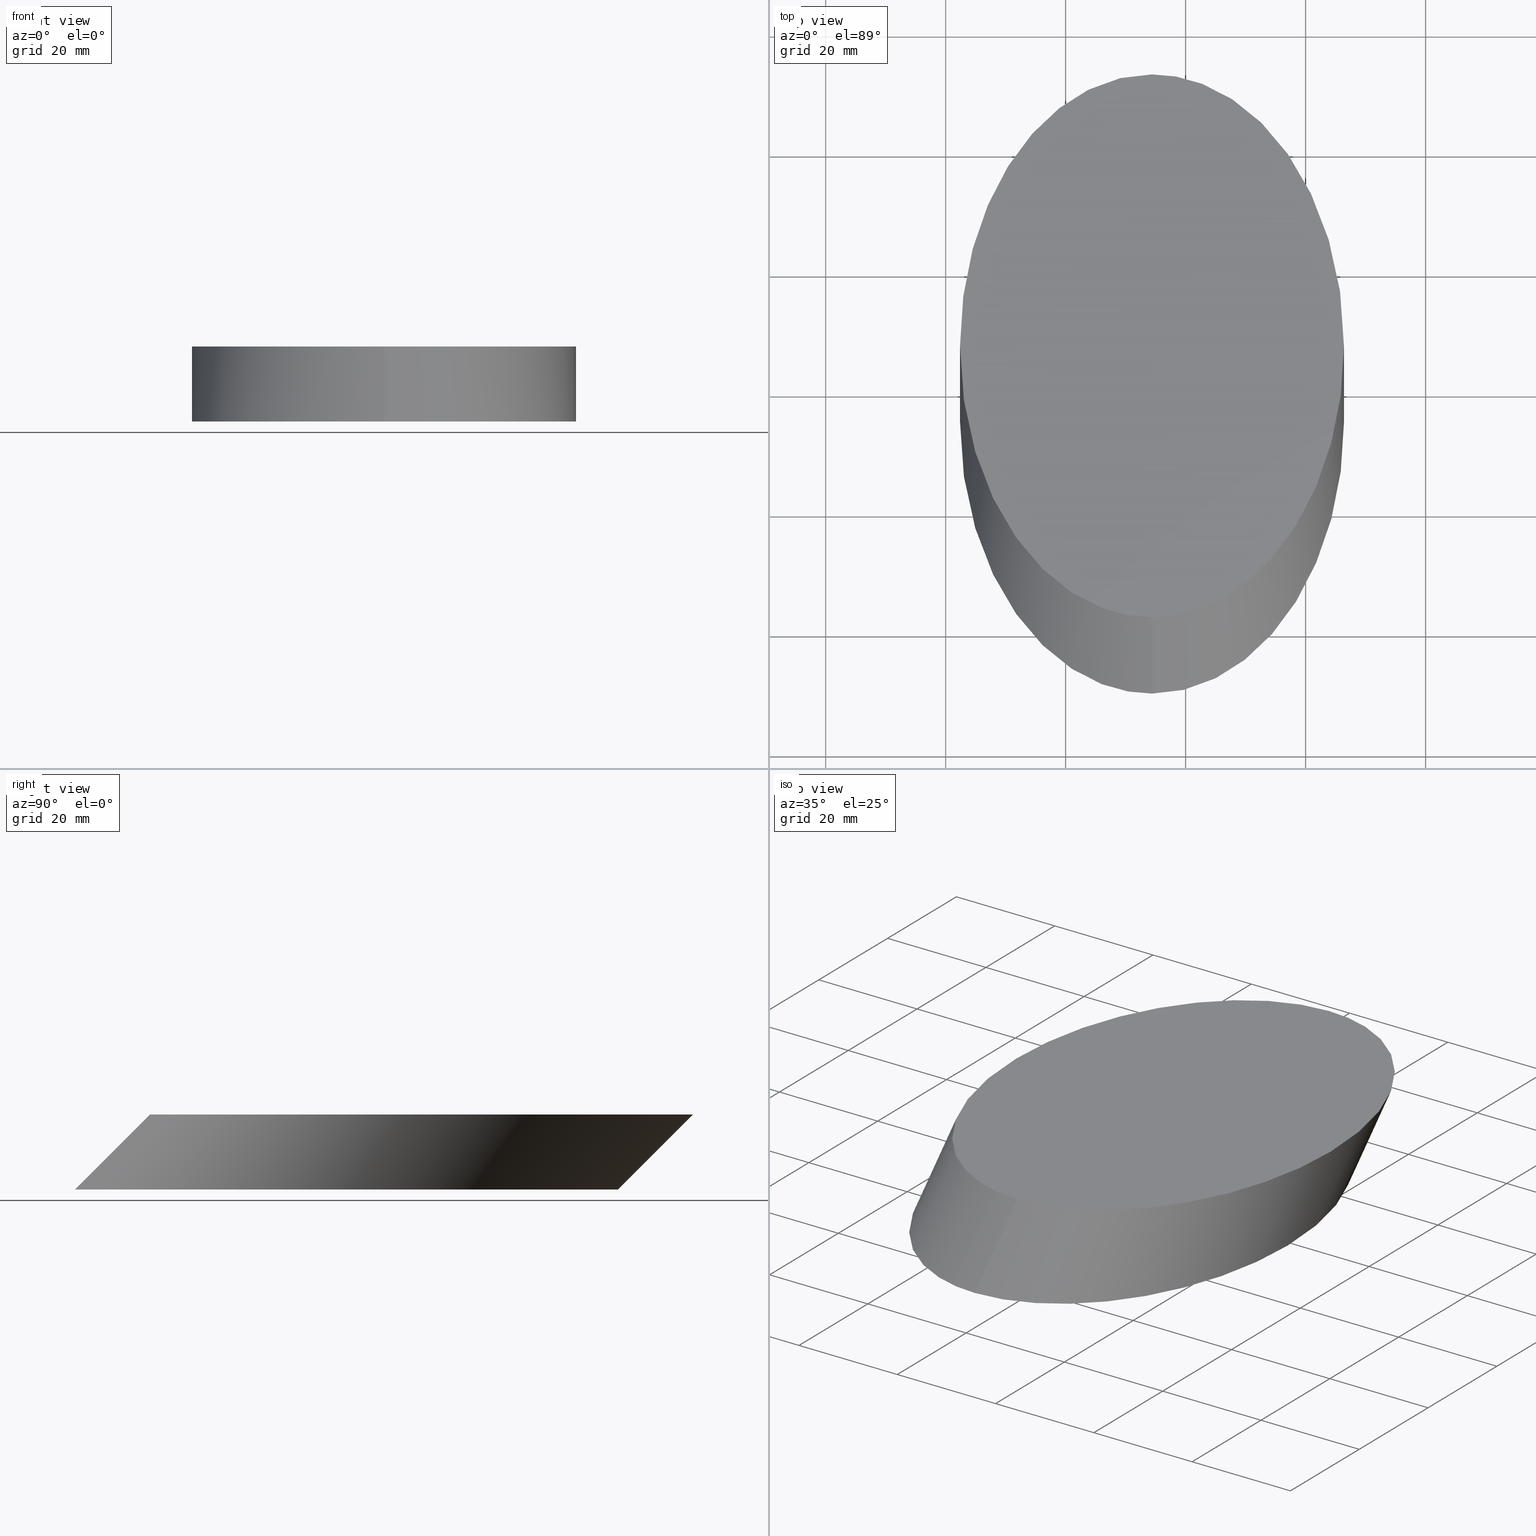
[diagram: canonical four-view strip — front | top / right | iso, engineering-drawing reading convention]
A machine part, canonical four-view strip (front | top / right | iso — engineering-drawing reading convention). The complete STEP part file that produces these views, byte-faithful:
ISO-10303-21;
HEADER;
FILE_DESCRIPTION (( 'STEP AP214' ),
    '1' );
FILE_NAME ('290005.STEP',
    '2019-08-12T02:04:54',
    ( '' ),
    ( '' ),
    'SwSTEP 2.0',
    'SolidWorks 2016',
    '' );
FILE_SCHEMA (( 'AUTOMOTIVE_DESIGN' ));
ENDSEC;

DATA;
#1 = CARTESIAN_POINT ( 'NONE',  ( 54.39238298171604700, -9.471128469677900300, -8.673617379884035500E-015 ) ) ;
#2 = PRESENTATION_LAYER_ASSIGNMENT (  '', '', ( #125 ) ) ;
#3 = CARTESIAN_POINT ( 'NONE',  ( 118.3923829817160300, 3.030519421700304400, 12.50164789137811800 ) ) ;
#4 = ORIENTED_EDGE ( 'NONE', *, *, #139, .T. ) ;
#5 = CARTESIAN_POINT ( 'NONE',  ( -9.607617018283935600, 81.04887153032210300, 0.0000000000000000000 ) ) ;
#6 = CARTESIAN_POINT ( 'NONE',  ( 54.39238298171605400, 93.55051942170031500, 12.50164789137811800 ) ) ;
#7 = PRESENTATION_STYLE_ASSIGNMENT (( #63 ) ) ;
#8 = PRESENTATION_LAYER_ASSIGNMENT (  '', '', ( #34 ) ) ;
#9 = UNCERTAINTY_MEASURE_WITH_UNIT (LENGTH_MEASURE( 1.000000000000000100E-005 ), #124, 'distance_accuracy_value', 'NONE');
#10 = VERTEX_POINT ( 'NONE', #103 ) ;
#11 = EDGE_LOOP ( 'NONE', ( #43, #148, #39, #46 ) ) ;
#12 = CARTESIAN_POINT ( 'NONE',  ( -9.607617018283940900, 3.030519421700327500, 12.50164789137811800 ) ) ;
#13 = FACE_OUTER_BOUND ( 'NONE', #20, .T. ) ;
#14 = CARTESIAN_POINT ( 'NONE',  ( 54.39238298171605400, 93.55051942170031500, 12.50164789137811800 ) ) ;
#15 = ORIENTED_EDGE ( 'NONE', *, *, #58, .F. ) ;
#16 = CARTESIAN_POINT ( 'NONE',  ( 118.3923829817160400, 93.55051942170031500, 12.50164789137811800 ) ) ;
#17 = CARTESIAN_POINT ( 'NONE',  ( 54.39238298171605400, 93.55051942170031500, 12.50164789137811800 ) ) ;
#18 =( GEOMETRIC_REPRESENTATION_CONTEXT ( 3 ) GLOBAL_UNCERTAINTY_ASSIGNED_CONTEXT ( ( #59 ) ) GLOBAL_UNIT_ASSIGNED_CONTEXT ( ( #106, #64, #110 ) ) REPRESENTATION_CONTEXT ( 'NONE', 'WORKASPACE' ) );
#19 = CARTESIAN_POINT ( 'NONE',  ( 118.3923829817160400, 3.030519421700304900, 12.50164789137811800 ) ) ;
#20 = EDGE_LOOP ( 'NONE', ( #62, #61 ) ) ;
#21 = PLANE ( 'NONE',  #69 ) ;
#22 = SURFACE_SIDE_STYLE ('',( #81 ) ) ;
#23 = SURFACE_STYLE_USAGE ( .BOTH. , #133 ) ;
#24 = VECTOR ( 'NONE', #108, 1000.000000000000100 ) ;
#25 = AXIS2_PLACEMENT_3D ( 'NONE', #104, #78, #143 ) ;
#26 = FACE_OUTER_BOUND ( 'NONE', #113, .T. ) ;
#27 = MECHANICAL_DESIGN_GEOMETRIC_PRESENTATION_REPRESENTATION (  '', ( #34 ), #18 ) ;
#28 = EDGE_LOOP ( 'NONE', ( #145, #107 ) ) ;
#29 = EDGE_CURVE ( 'NONE', #10, #92, #91, .T. ) ;
#30 = CLOSED_SHELL ( 'NONE', ( #137, #49, #57, #134 ) ) ;
#31 =( BOUNDED_CURVE ( )  B_SPLINE_CURVE ( 3, ( #14, #147, #12, #102 ),
 .UNSPECIFIED., .F., .T. ) 
 B_SPLINE_CURVE_WITH_KNOTS ( ( 4, 4 ),
 ( 0.0000000000000000000, 3.141592653589793100 ),
 .UNSPECIFIED. ) 
 CURVE ( )  GEOMETRIC_REPRESENTATION_ITEM ( )  RATIONAL_B_SPLINE_CURVE ( ( 1.000000000000000000, 0.3333333333333333700, 0.3333333333333333700, 1.000000000000000000 ) ) 
 REPRESENTATION_ITEM ( '' )  );
#32 = CARTESIAN_POINT ( 'NONE',  ( 54.39238298171605400, 81.04887153032210300, 0.0000000000000000000 ) ) ;
#33 = PRODUCT_DEFINITION_CONTEXT ( 'detailed design', #132, 'design' ) ;
#34 = STYLED_ITEM ( 'NONE', ( #7 ), #140 ) ;
#35 = PRODUCT_DEFINITION_FORMATION_WITH_SPECIFIED_SOURCE ( '�κ�', '', #93, .NOT_KNOWN. ) ;
#36 = FILL_AREA_STYLE ('',( #97 ) ) ;
#37 = EDGE_CURVE ( 'NONE', #141, #92, #88, .T. ) ;
#38 = CARTESIAN_POINT ( 'NONE',  ( 54.39238298171605400, 81.04887153032210300, 0.0000000000000000000 ) ) ;
#39 = ORIENTED_EDGE ( 'NONE', *, *, #29, .T. ) ;
#40 = CARTESIAN_POINT ( 'NONE',  ( 54.39238298171605400, 81.04887153032210300, 0.0000000000000000000 ) ) ;
#41 = SHAPE_DEFINITION_REPRESENTATION ( #56, #116 ) ;
#42 = CARTESIAN_POINT ( 'NONE',  ( 54.39238298171604700, -9.471128469677889700, 0.0000000000000000000 ) ) ;
#43 = ORIENTED_EDGE ( 'NONE', *, *, #115, .F. ) ;
#44 =( GEOMETRIC_REPRESENTATION_CONTEXT ( 3 ) GLOBAL_UNCERTAINTY_ASSIGNED_CONTEXT ( ( #65 ) ) GLOBAL_UNIT_ASSIGNED_CONTEXT ( ( #99, #111, #100 ) ) REPRESENTATION_CONTEXT ( 'NONE', 'WORKASPACE' ) );
#45 = COLOUR_RGB ( '',1.000000000000000000, 1.000000000000000000, 1.000000000000000000 ) ;
#46 = ORIENTED_EDGE ( 'NONE', *, *, #37, .F. ) ;
#47 =( BOUNDED_CURVE ( )  B_SPLINE_CURVE ( 3, ( #40, #5, #67, #42 ),
 .UNSPECIFIED., .F., .F. ) 
 B_SPLINE_CURVE_WITH_KNOTS ( ( 4, 4 ),
 ( 0.0000000000000000000, 3.141592653589793100 ),
 .UNSPECIFIED. ) 
 CURVE ( )  GEOMETRIC_REPRESENTATION_ITEM ( )  RATIONAL_B_SPLINE_CURVE ( ( 1.000000000000000000, 0.3333333333333333700, 0.3333333333333333700, 1.000000000000000000 ) ) 
 REPRESENTATION_ITEM ( '' )  );
#48 = CARTESIAN_POINT ( 'NONE',  ( -9.607617018283940900, 3.030519421700327500, 12.50164789137812200 ) ) ;
#49 = ADVANCED_FACE ( 'NONE', ( #26 ), #74, .F. ) ;
#50 = CARTESIAN_POINT ( 'NONE',  ( -9.607617018283940900, -9.471128469677887900, -7.806255641895630300E-015 ) ) ;
#51 = CARTESIAN_POINT ( 'NONE',  ( 54.39238298171604700, 3.030519421700316000, 12.50164789137811800 ) ) ;
#52 = CARTESIAN_POINT ( 'NONE',  ( 54.39238298171604700, 3.030519421700316000, 12.50164789137811800 ) ) ;
#53 = LINE ( 'NONE', #122, #24 ) ;
#54 = FILL_AREA_STYLE ('',( #86 ) ) ;
#55 = PRODUCT_RELATED_PRODUCT_CATEGORY ( 'part', '', ( #93 ) ) ;
#56 = PRODUCT_DEFINITION_SHAPE ( 'NONE', 'NONE',  #136 ) ;
#57 = ADVANCED_FACE ( 'NONE', ( #114 ), #146, .T. ) ;
#58 = EDGE_CURVE ( 'NONE', #141, #94, #31, .T. ) ;
#59 = UNCERTAINTY_MEASURE_WITH_UNIT (LENGTH_MEASURE( 1.000000000000000100E-005 ), #106, 'distance_accuracy_value', 'NONE');
#60 = DIRECTION ( 'NONE',  ( 1.000000000000000000, 0.0000000000000000000, -0.0000000000000000000 ) ) ;
#61 = ORIENTED_EDGE ( 'NONE', *, *, #29, .F. ) ;
#62 = ORIENTED_EDGE ( 'NONE', *, *, #139, .F. ) ;
#63 = SURFACE_STYLE_USAGE ( .BOTH. , #22 ) ;
#64 =( NAMED_UNIT ( * ) PLANE_ANGLE_UNIT ( ) SI_UNIT ( $, .RADIAN. ) );
#65 = UNCERTAINTY_MEASURE_WITH_UNIT (LENGTH_MEASURE( 1.000000000000000100E-005 ), #99, 'distance_accuracy_value', 'NONE');
#66 = VECTOR ( 'NONE', #118, 1000.000000000000100 ) ;
#67 = CARTESIAN_POINT ( 'NONE',  ( -9.607617018283940900, -9.471128469677877200, 0.0000000000000000000 ) ) ;
#68 = PRODUCT_CONTEXT ( 'NONE', #123, 'mechanical' ) ;
#69 = AXIS2_PLACEMENT_3D ( 'NONE', #131, #129, #105 ) ;
#70 =( NAMED_UNIT ( * ) PLANE_ANGLE_UNIT ( ) SI_UNIT ( $, .RADIAN. ) );
#71 = CARTESIAN_POINT ( 'NONE',  ( 54.39238298171604700, -9.471128469677889700, 0.0000000000000000000 ) ) ;
#72 = CARTESIAN_POINT ( 'NONE',  ( 118.3923829817160400, 81.04887153032208900, -5.204170427930420500E-015 ) ) ;
#73 = CARTESIAN_POINT ( 'NONE',  ( 54.39238298171605400, 81.04887153032210300, -5.204170427930421300E-015 ) ) ;
#74 =( BOUNDED_SURFACE ( )  B_SPLINE_SURFACE ( 3, 1, ( 
 ( #96, #95 ),
 ( #127, #117 ),
 ( #48, #50 ),
 ( #126, #1 ) ),
 .UNSPECIFIED., .F., .F., .T. ) 
 B_SPLINE_SURFACE_WITH_KNOTS ( ( 4, 4 ),
 ( 2, 2 ),
 ( 0.0000000000000000000, 1.000000000000000000 ),
 ( 0.0000000000000000000, 1.000000000000000000 ),
 .UNSPECIFIED. ) 
 GEOMETRIC_REPRESENTATION_ITEM ( )  RATIONAL_B_SPLINE_SURFACE ( (
 ( 1.000000000000000000, 1.000000000000000000),
 ( 0.3333333333333333700, 0.3333333333333333700),
 ( 0.3333333333333333700, 0.3333333333333333700),
 ( 1.000000000000000000, 1.000000000000000000) ) ) 
 REPRESENTATION_ITEM ( '' )  SURFACE ( )  );
#75 = CARTESIAN_POINT ( 'NONE',  ( 54.39238298171605400, 93.55051942170031500, 12.50164789137811800 ) ) ;
#76 = PRESENTATION_STYLE_ASSIGNMENT (( #23 ) ) ;
#77 = FACE_OUTER_BOUND ( 'NONE', #11, .T. ) ;
#78 = DIRECTION ( 'NONE',  ( 0.0000000000000000000, 0.0000000000000000000, 1.000000000000000000 ) ) ;
#79 =( NAMED_UNIT ( * ) SI_UNIT ( $, .STERADIAN. ) SOLID_ANGLE_UNIT ( ) );
#80 =( BOUNDED_CURVE ( )  B_SPLINE_CURVE ( 3, ( #52, #3, #98, #75 ),
 .UNSPECIFIED., .F., .F. ) 
 B_SPLINE_CURVE_WITH_KNOTS ( ( 4, 4 ),
 ( 3.141592653589793100, 6.283185307179586200 ),
 .UNSPECIFIED. ) 
 CURVE ( )  GEOMETRIC_REPRESENTATION_ITEM ( )  RATIONAL_B_SPLINE_CURVE ( ( 1.000000000000000000, 0.3333333333333333700, 0.3333333333333333700, 1.000000000000000000 ) ) 
 REPRESENTATION_ITEM ( '' )  );
#81 = SURFACE_STYLE_FILL_AREA ( #36 ) ;
#82 = DIRECTION ( 'NONE',  ( 0.0000000000000000000, 0.0000000000000000000, 1.000000000000000000 ) ) ;
#83 = CARTESIAN_POINT ( 'NONE',  ( 118.3923829817160300, -9.471128469677898600, 0.0000000000000000000 ) ) ;
#84 = CARTESIAN_POINT ( 'NONE',  ( 54.39238298171605400, 93.55051942170031500, 12.50164789137811800 ) ) ;
#85 = MECHANICAL_DESIGN_GEOMETRIC_PRESENTATION_REPRESENTATION (  '', ( #125 ), #128 ) ;
#86 = FILL_AREA_STYLE_COLOUR ( '', #101 ) ;
#87 = CARTESIAN_POINT ( 'NONE',  ( 118.3923829817160400, -9.471128469677907400, -5.204170427930420500E-015 ) ) ;
#88 = LINE ( 'NONE', #84, #66 ) ;
#89 = APPLICATION_PROTOCOL_DEFINITION ( 'draft international standard', 'automotive_design', 1998, #132 ) ;
#90 = EDGE_CURVE ( 'NONE', #94, #10, #53, .T. ) ;
#91 =( BOUNDED_CURVE ( )  B_SPLINE_CURVE ( 3, ( #71, #83, #138, #32 ),
 .UNSPECIFIED., .F., .T. ) 
 B_SPLINE_CURVE_WITH_KNOTS ( ( 4, 4 ),
 ( 3.141592653589793100, 6.283185307179586200 ),
 .UNSPECIFIED. ) 
 CURVE ( )  GEOMETRIC_REPRESENTATION_ITEM ( )  RATIONAL_B_SPLINE_CURVE ( ( 1.000000000000000000, 0.3333333333333333700, 0.3333333333333333700, 1.000000000000000000 ) ) 
 REPRESENTATION_ITEM ( '' )  );
#92 = VERTEX_POINT ( 'NONE', #38 ) ;
#93 = PRODUCT ( '290005', '290005', '', ( #68 ) ) ;
#94 = VERTEX_POINT ( 'NONE', #51 ) ;
#95 = CARTESIAN_POINT ( 'NONE',  ( 54.39238298171605400, 81.04887153032210300, -8.673617379884035500E-015 ) ) ;
#96 = CARTESIAN_POINT ( 'NONE',  ( 54.39238298171605400, 93.55051942170031500, 12.50164789137812000 ) ) ;
#97 = FILL_AREA_STYLE_COLOUR ( '', #45 ) ;
#98 = CARTESIAN_POINT ( 'NONE',  ( 118.3923829817160300, 93.55051942170031500, 12.50164789137811800 ) ) ;
#99 =( LENGTH_UNIT ( ) NAMED_UNIT ( * ) SI_UNIT ( .MILLI., .METRE. ) );
#100 =( NAMED_UNIT ( * ) SI_UNIT ( $, .STERADIAN. ) SOLID_ANGLE_UNIT ( ) );
#101 = COLOUR_RGB ( '',1.000000000000000000, 1.000000000000000000, 1.000000000000000000 ) ;
#102 = CARTESIAN_POINT ( 'NONE',  ( 54.39238298171604700, 3.030519421700316000, 12.50164789137811800 ) ) ;
#103 = CARTESIAN_POINT ( 'NONE',  ( 54.39238298171604700, -9.471128469677889700, 0.0000000000000000000 ) ) ;
#104 = CARTESIAN_POINT ( 'NONE',  ( 0.0000000000000000000, 0.0000000000000000000, 0.0000000000000000000 ) ) ;
#105 = DIRECTION ( 'NONE',  ( 1.000000000000000000, 0.0000000000000000000, -0.0000000000000000000 ) ) ;
#106 =( LENGTH_UNIT ( ) NAMED_UNIT ( * ) SI_UNIT ( .MILLI., .METRE. ) );
#107 = ORIENTED_EDGE ( 'NONE', *, *, #115, .T. ) ;
#108 = DIRECTION ( 'NONE',  ( 0.0000000000000000000, -0.7071067811865500200, -0.7071067811865451300 ) ) ;
#109 = SURFACE_STYLE_FILL_AREA ( #54 ) ;
#110 =( NAMED_UNIT ( * ) SI_UNIT ( $, .STERADIAN. ) SOLID_ANGLE_UNIT ( ) );
#111 =( NAMED_UNIT ( * ) PLANE_ANGLE_UNIT ( ) SI_UNIT ( $, .RADIAN. ) );
#112 = ORIENTED_EDGE ( 'NONE', *, *, #90, .F. ) ;
#113 = EDGE_LOOP ( 'NONE', ( #112, #15, #130, #4 ) ) ;
#114 = FACE_OUTER_BOUND ( 'NONE', #28, .T. ) ;
#115 = EDGE_CURVE ( 'NONE', #94, #141, #80, .T. ) ;
#116 = ADVANCED_BREP_SHAPE_REPRESENTATION ( '290005', ( #140, #25 ), #44 ) ;
#117 = CARTESIAN_POINT ( 'NONE',  ( -9.607617018283935600, 81.04887153032208900, -7.806255641895630300E-015 ) ) ;
#118 = DIRECTION ( 'NONE',  ( 0.0000000000000000000, -0.7071067811865500200, -0.7071067811865451300 ) ) ;
#119 = CARTESIAN_POINT ( 'NONE',  ( 54.39238298171604700, 3.030519421700316000, 12.50164789137811800 ) ) ;
#120 =( BOUNDED_SURFACE ( )  B_SPLINE_SURFACE ( 3, 1, ( 
 ( #119, #121 ),
 ( #19, #87 ),
 ( #16, #72 ),
 ( #6, #73 ) ),
 .UNSPECIFIED., .F., .F., .F. ) 
 B_SPLINE_SURFACE_WITH_KNOTS ( ( 4, 4 ),
 ( 2, 2 ),
 ( 0.0000000000000000000, 1.000000000000000000 ),
 ( 0.0000000000000000000, 1.000000000000000000 ),
 .UNSPECIFIED. ) 
 GEOMETRIC_REPRESENTATION_ITEM ( )  RATIONAL_B_SPLINE_SURFACE ( (
 ( 1.000000000000000000, 1.000000000000000000),
 ( 0.3333333333333333700, 0.3333333333333333700),
 ( 0.3333333333333333700, 0.3333333333333333700),
 ( 1.000000000000000000, 1.000000000000000000) ) ) 
 REPRESENTATION_ITEM ( '' )  SURFACE ( )  );
#121 = CARTESIAN_POINT ( 'NONE',  ( 54.39238298171604700, -9.471128469677895000, -5.204170427930421300E-015 ) ) ;
#122 = CARTESIAN_POINT ( 'NONE',  ( 54.39238298171604700, 3.030519421700316000, 12.50164789137811800 ) ) ;
#123 = APPLICATION_CONTEXT ( 'automotive_design' ) ;
#124 =( LENGTH_UNIT ( ) NAMED_UNIT ( * ) SI_UNIT ( .MILLI., .METRE. ) );
#125 = STYLED_ITEM ( 'NONE', ( #76 ), #116 ) ;
#126 = CARTESIAN_POINT ( 'NONE',  ( 54.39238298171604700, 3.030519421700316000, 12.50164789137812000 ) ) ;
#127 = CARTESIAN_POINT ( 'NONE',  ( -9.607617018283935600, 93.55051942170031500, 12.50164789137812200 ) ) ;
#128 =( GEOMETRIC_REPRESENTATION_CONTEXT ( 3 ) GLOBAL_UNCERTAINTY_ASSIGNED_CONTEXT ( ( #9 ) ) GLOBAL_UNIT_ASSIGNED_CONTEXT ( ( #124, #70, #79 ) ) REPRESENTATION_CONTEXT ( 'NONE', 'WORKASPACE' ) );
#129 = DIRECTION ( 'NONE',  ( 0.0000000000000000000, 0.0000000000000000000, 1.000000000000000000 ) ) ;
#130 = ORIENTED_EDGE ( 'NONE', *, *, #37, .T. ) ;
#131 = CARTESIAN_POINT ( 'NONE',  ( 54.39238298171605400, 35.78887153032210500, 0.0000000000000000000 ) ) ;
#132 = APPLICATION_CONTEXT ( 'automotive_design' ) ;
#133 = SURFACE_SIDE_STYLE ('',( #109 ) ) ;
#134 = ADVANCED_FACE ( 'NONE', ( #13 ), #21, .F. ) ;
#135 = CARTESIAN_POINT ( 'NONE',  ( 54.39238298171605400, 48.29051942170031000, 12.50164789137811800 ) ) ;
#136 = PRODUCT_DEFINITION ( 'δ֪', '', #35, #33 ) ;
#137 = ADVANCED_FACE ( 'NONE', ( #77 ), #120, .F. ) ;
#138 = CARTESIAN_POINT ( 'NONE',  ( 118.3923829817160300, 81.04887153032210300, 0.0000000000000000000 ) ) ;
#139 = EDGE_CURVE ( 'NONE', #92, #10, #47, .T. ) ;
#140 = MANIFOLD_SOLID_BREP ( '͹̨-����2', #30 ) ;
#141 = VERTEX_POINT ( 'NONE', #17 ) ;
#142 = APPLICATION_PROTOCOL_DEFINITION ( 'draft international standard', 'automotive_design', 1998, #123 ) ;
#143 = DIRECTION ( 'NONE',  ( 1.000000000000000000, 0.0000000000000000000, 0.0000000000000000000 ) ) ;
#144 = AXIS2_PLACEMENT_3D ( 'NONE', #135, #82, #60 ) ;
#145 = ORIENTED_EDGE ( 'NONE', *, *, #58, .T. ) ;
#146 = PLANE ( 'NONE',  #144 ) ;
#147 = CARTESIAN_POINT ( 'NONE',  ( -9.607617018283935600, 93.55051942170031500, 12.50164789137811800 ) ) ;
#148 = ORIENTED_EDGE ( 'NONE', *, *, #90, .T. ) ;
ENDSEC;
END-ISO-10303-21;
